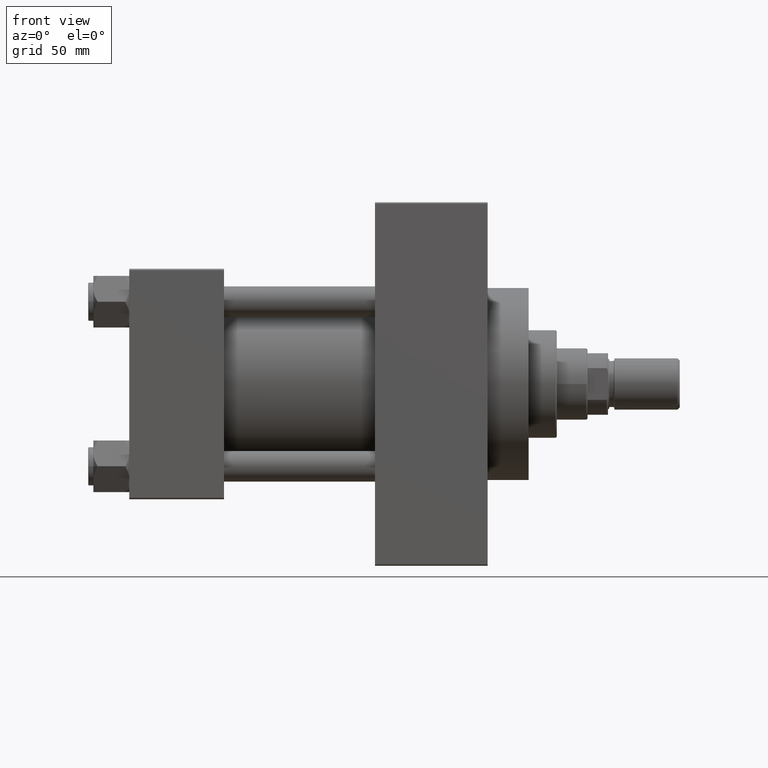
[diagram: clean part render]
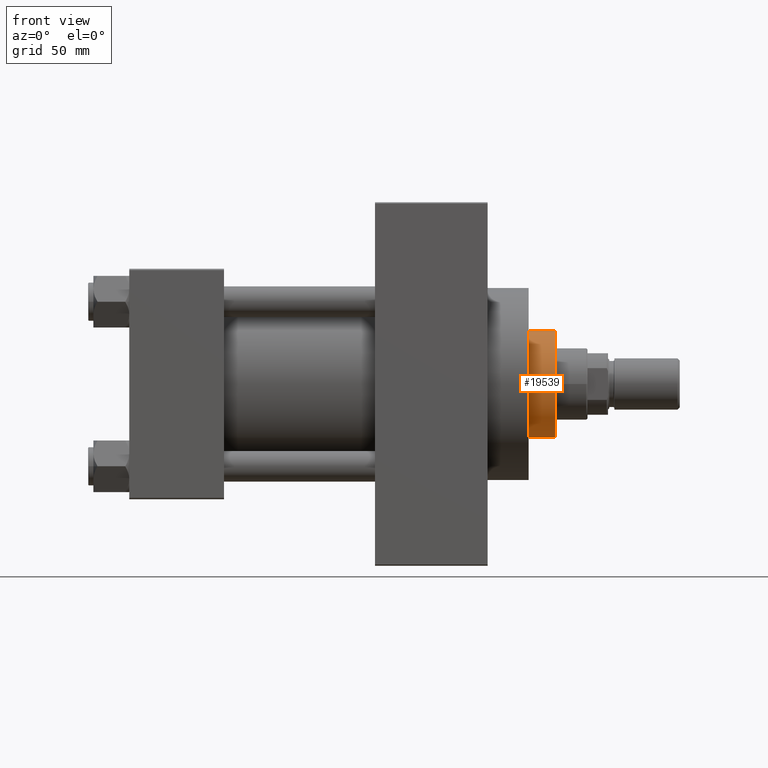
[diagram: same view with one face highlighted and labeled with its STEP entity id]
A machine part, front view. The second image highlights one B-rep face of the part: STEP entity #19539.
In plain terms, the highlighted cylindrical surface (partial cylindrical patch) has radius 21 mm, axis along (-1, 0, 0).
Its self-contained STEP definition (entity closure, byte-faithful):
#1104 = DIRECTION ( 'NONE',  ( 1.000000000000000000, 0.000000000000000000, 0.000000000000000000 ) ) ;
#2938 = VERTEX_POINT ( 'NONE', #44275 ) ;
#3166 = EDGE_CURVE ( 'NONE', #7583, #44455, #44223, .T. ) ;
#4232 = DIRECTION ( 'NONE',  ( 0.000000000000000000, 0.000000000000000000, -1.000000000000000000 ) ) ;
#4707 = AXIS2_PLACEMENT_3D ( 'NONE', #11474, #4232, #11710 ) ;
#4838 = DIRECTION ( 'NONE',  ( -0.000000000000000000, -0.000000000000000000, -1.000000000000000000 ) ) ;
#5724 = VECTOR ( 'NONE', #37229, 1000.000000000000000 ) ;
#7583 = VERTEX_POINT ( 'NONE', #23283 ) ;
#8013 = CARTESIAN_POINT ( 'NONE',  ( 21.00000000000000000, 2.571758278209441661E-15, 43.25999999999999801 ) ) ;
#8054 = CARTESIAN_POINT ( 'NONE',  ( -21.00000000000000000, 0.000000000000000000, 53.76000000000001933 ) ) ;
#9073 = VECTOR ( 'NONE', #9357, 1000.000000000000000 ) ;
#9094 = EDGE_CURVE ( 'NONE', #44455, #2938, #31968, .T. ) ;
#9357 = DIRECTION ( 'NONE',  ( -0.000000000000000000, -0.000000000000000000, -1.000000000000000000 ) ) ;
#9537 = ORIENTED_EDGE ( 'NONE', *, *, #3166, .T. ) ;
#10770 = VERTEX_POINT ( 'NONE', #8054 ) ;
#11474 = CARTESIAN_POINT ( 'NONE',  ( 0.000000000000000000, 0.000000000000000000, 53.76000000000001933 ) ) ;
#11710 = DIRECTION ( 'NONE',  ( 1.000000000000000000, 0.000000000000000000, 0.000000000000000000 ) ) ;
#12074 = CARTESIAN_POINT ( 'NONE',  ( 0.000000000000000000, 0.000000000000000000, 54.26000000000000512 ) ) ;
#12768 = FACE_OUTER_BOUND ( 'NONE', #41824, .T. ) ;
#13716 = EDGE_CURVE ( 'NONE', #10770, #2938, #20186, .T. ) ;
#15080 = DIRECTION ( 'NONE',  ( 0.000000000000000000, 0.000000000000000000, 1.000000000000000000 ) ) ;
#17672 = AXIS2_PLACEMENT_3D ( 'NONE', #12074, #4838, #41706 ) ;
#19539 = ADVANCED_FACE ( 'NONE', ( #12768 ), #30848, .T. ) ;
#20186 = LINE ( 'NONE', #27164, #9073 ) ;
#21653 = ORIENTED_EDGE ( 'NONE', *, *, #13716, .F. ) ;
#23283 = CARTESIAN_POINT ( 'NONE',  ( 21.00000000000000000, 2.571758278209441661E-15, 53.76000000000001933 ) ) ;
#23942 = CIRCLE ( 'NONE', #4707, 21.00000000000000000 ) ;
#26044 = EDGE_CURVE ( 'NONE', #10770, #7583, #23942, .T. ) ;
#27164 = CARTESIAN_POINT ( 'NONE',  ( -21.00000000000000000, 0.000000000000000000, 54.26000000000000512 ) ) ;
#30848 = CYLINDRICAL_SURFACE ( 'NONE', #17672, 21.00000000000000000 ) ;
#31968 = CIRCLE ( 'NONE', #38144, 21.00000000000000000 ) ;
#33397 = CARTESIAN_POINT ( 'NONE',  ( 0.000000000000000000, 0.000000000000000000, 43.25999999999999801 ) ) ;
#37229 = DIRECTION ( 'NONE',  ( -0.000000000000000000, -0.000000000000000000, -1.000000000000000000 ) ) ;
#38144 = AXIS2_PLACEMENT_3D ( 'NONE', #33397, #15080, #1104 ) ;
#38357 = ORIENTED_EDGE ( 'NONE', *, *, #9094, .T. ) ;
#40597 = ORIENTED_EDGE ( 'NONE', *, *, #26044, .T. ) ;
#41706 = DIRECTION ( 'NONE',  ( -1.000000000000000000, 0.000000000000000000, 0.000000000000000000 ) ) ;
#41824 = EDGE_LOOP ( 'NONE', ( #40597, #9537, #38357, #21653 ) ) ;
#44223 = LINE ( 'NONE', #45185, #5724 ) ;
#44275 = CARTESIAN_POINT ( 'NONE',  ( -21.00000000000000000, 0.000000000000000000, 43.25999999999999801 ) ) ;
#44455 = VERTEX_POINT ( 'NONE', #8013 ) ;
#45185 = CARTESIAN_POINT ( 'NONE',  ( 21.00000000000000000, 2.571758278209441661E-15, 54.26000000000000512 ) ) ;